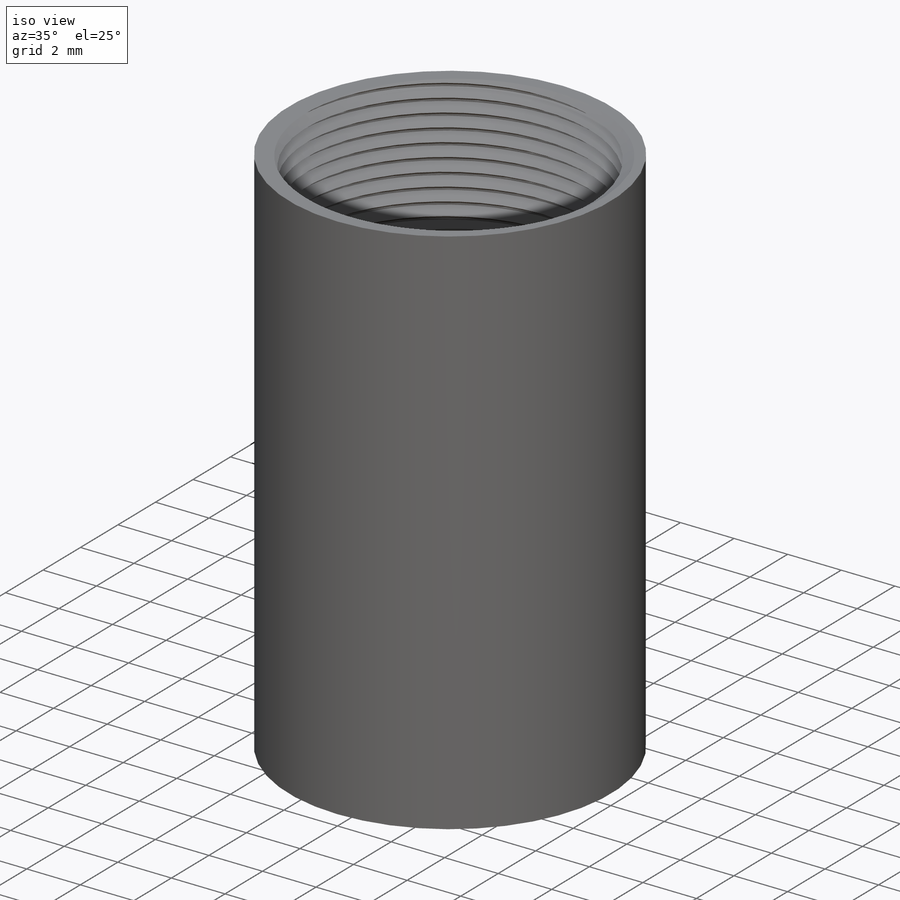
[diagram: iso view]
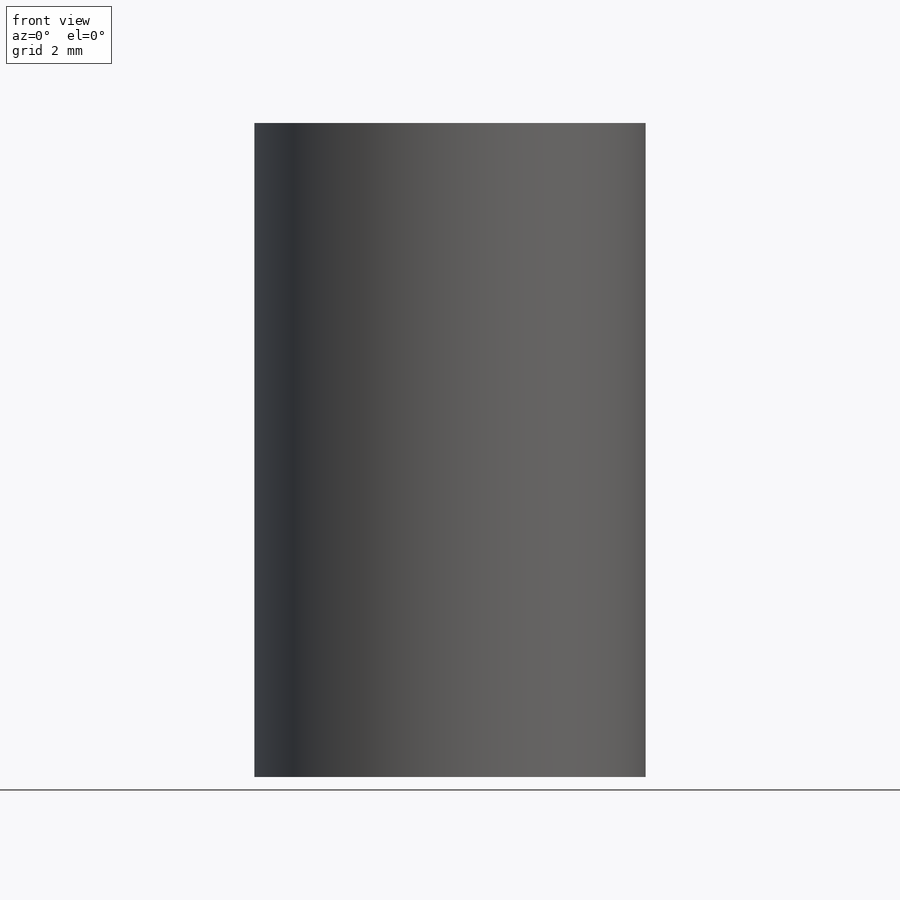
[diagram: front view]
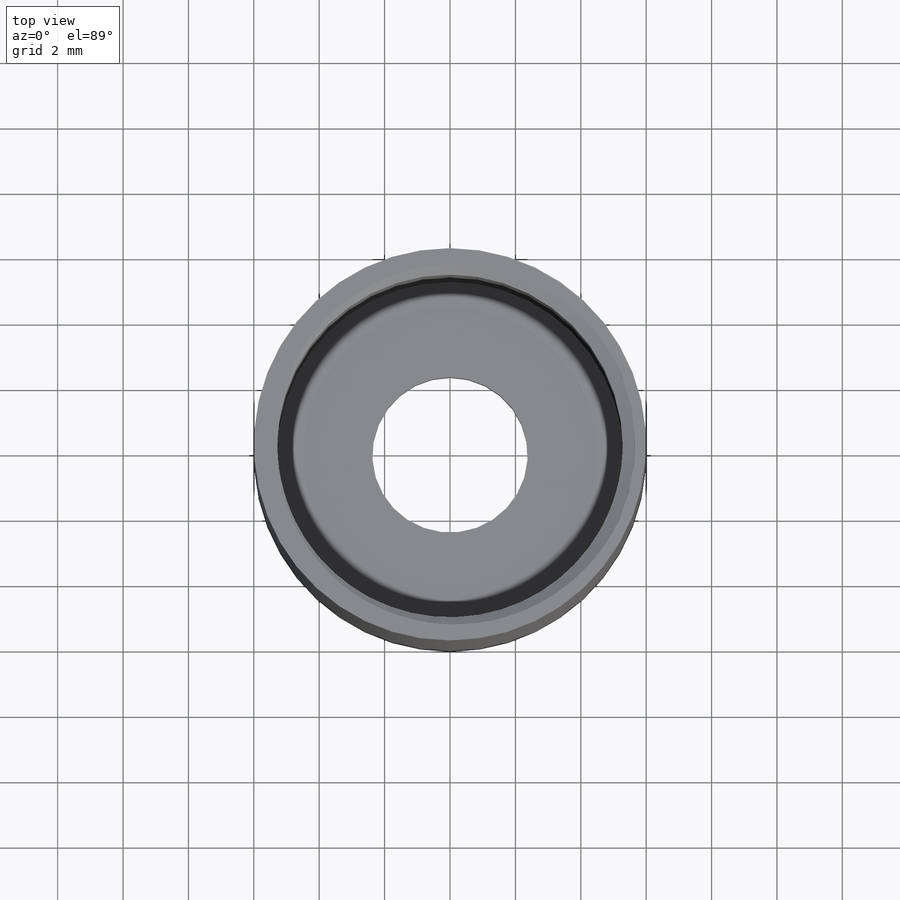
[diagram: top view]
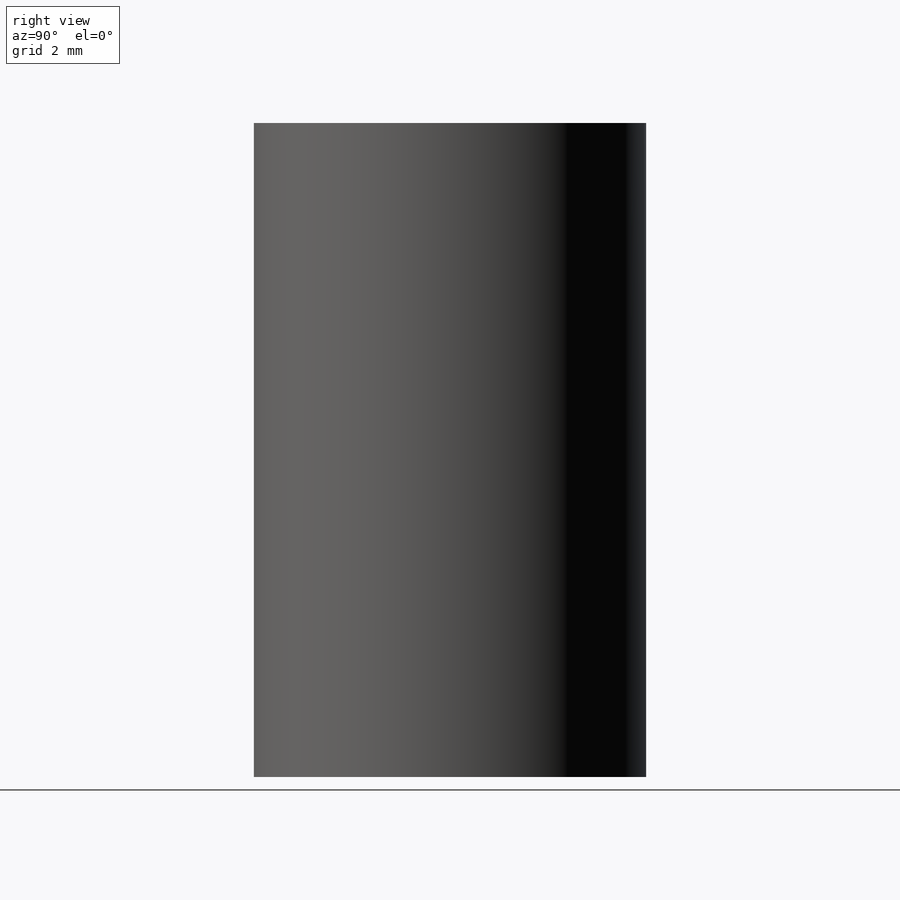
[diagram: right view]
SOLIDWORKS PART (.sldprt)
format: sldprt  version: not decoded by parser v0  size: 671,744 bytes
history: native  units: mm
features: sketch x13, cut_extrude x6, extrude x4, material x1, thread x1, helix x1, sweep x1, cut_revolve x1 (+13 scaffold rows collapsed)
feature tree (41):
  scaffold x13  (default folders/planes/origin — collapsed)
  material  "Material <not specified>"
  sketch  "Sketch1"  dims[D1=12.0mm D2=1.5mm]
  extrude  "Boss-Extrude1"  Depth=20mm
  sketch  "Sketch2"
  cut_extrude  "Cut-Extrude1"  [1 undecoded]
  thread  "Cosmetic Thread2"  Diameter=0.5mm  [1 undecoded]
  sketch  "Sketch3"
  extrude  "Boss-Extrude2"  Depth=1.15225mm
  sketch  "Sketch4"  dims[D1=3.0mm]
  cut_extrude  "Cut-Extrude2"  Depth=20.5mm
  sketch  "Sketch5"
  extrude  "Boss-Extrude3"  Depth=1.5mm
  sketch  "Sketch6"  dims[D1=3.0mm]
  cut_extrude  "Cut-Extrude3"  Depth=16.5mm
  sketch  "Sketch7"
  helix  "Helix/Spiral1"  Pitch=5mm
  sketch  "Sketch9"  dims[D1=0.25mm D2=0.25mm D3=30.0deg D4=0.125mm]
  sweep  "Cut-Sweep1"
  sketch  "Sketch10"  dims[D1=~12.981221mm]
  cut_revolve  "Cut-Revolve3"  Angle=360deg
  sketch  "Sketch11"  dims[D1=4.75mm]
  cut_extrude  "Cut-Extrude4"  Depth=36mm
  sketch  "Sketch12"
  cut_extrude  "Cut-Extrude5"  Depth=12.67mm
  sketch  "Sketch13"  dims[D1=~0.155842mm]
  cut_extrude  "Cut-Extrude6"  Depth=72.665614mm
  sketch  "Sketch14"  dims[D1=3.5mm]
  extrude  "Boss-Extrude4"  Depth=1mm
decode coverage: 20 of 27 modeling features carry decoded parameters
note: ~ marks probable driven/reference dimensions
note: 2 parameter values undecoded
note: suppression state not decoded; provenance and decode notes live in map.json
